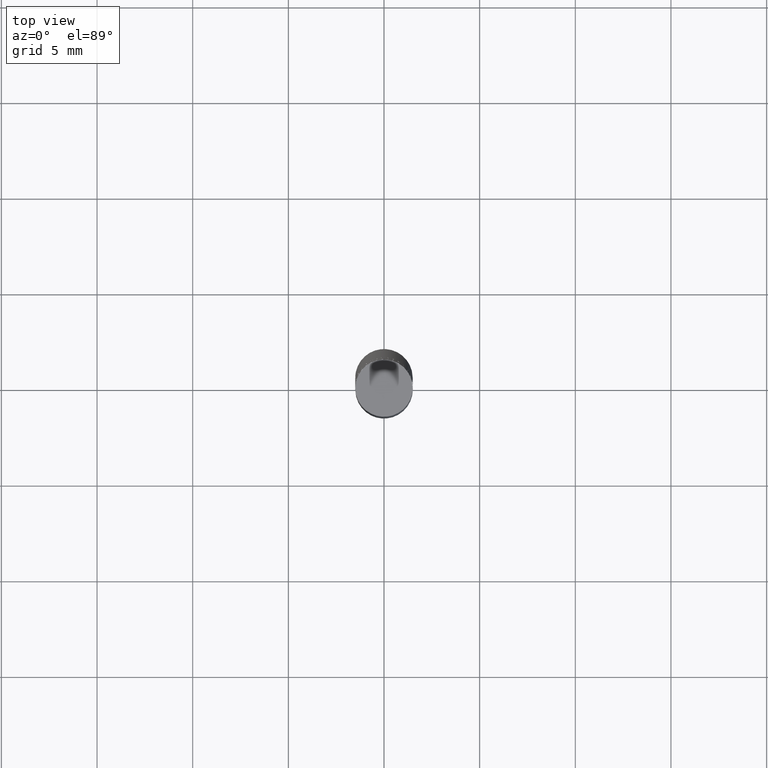
[diagram: clean part render]
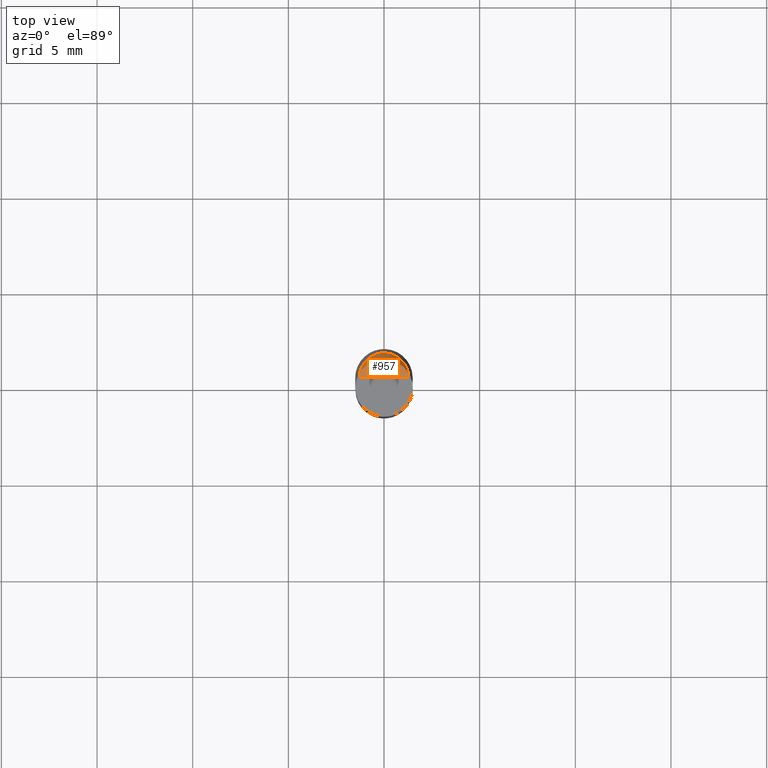
[diagram: same view with one face highlighted and labeled with its STEP entity id]
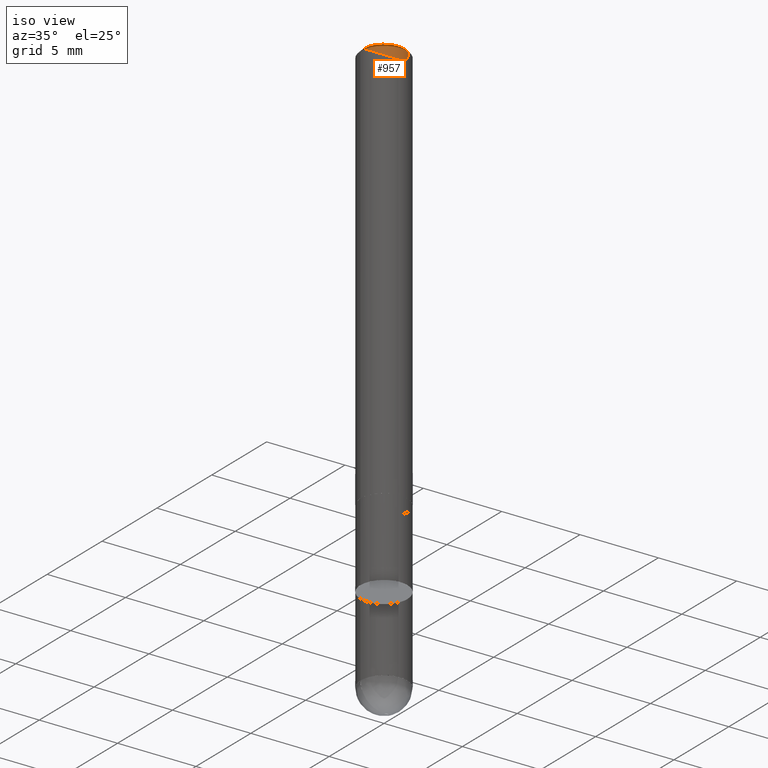
[diagram: same view with one face highlighted and labeled with its STEP entity id]
A machine part, top view. The second image highlights one B-rep face of the part: STEP entity #957.
A second angle (iso view) of the same face is appended — the face is thin or edge-on in the first view.
In plain terms, the highlighted face is a freeform B-spline surface patch.
Its self-contained STEP definition (entity closure, byte-faithful):
#736=CARTESIAN_POINT('',(1.3,0.0,26.0));
#737=CARTESIAN_POINT('',(1.3,1.3,26.0));
#738=CARTESIAN_POINT('',(0.0,1.3,26.0));
#739=CARTESIAN_POINT('',(-1.3,1.3,26.0));
#740=CARTESIAN_POINT('',(-1.3,0.0,26.0));
#741=CARTESIAN_POINT('',(0.0,0.0,26.0));
#942=(
BOUNDED_SURFACE()
B_SPLINE_SURFACE(1,2,(
(#736,#737,#738,#739,#740),
(#741,#741,#741,#741,#741)
), .UNSPECIFIED.,.F.,.F.,.F.)
B_SPLINE_SURFACE_WITH_KNOTS((2,2),(3,2,3),(
0.0,1.0),(
0.0,0.5,1.0), .UNSPECIFIED.)
GEOMETRIC_REPRESENTATION_ITEM()
RATIONAL_B_SPLINE_SURFACE(((1.0,0.707106781187,1.0,0.707106781187,1.0),
(1.0,0.707106781187,1.0,0.707106781187,1.0)
))
REPRESENTATION_ITEM('')
SURFACE()
);
#943=(
BOUNDED_CURVE()
B_SPLINE_CURVE(2,(#740,#739,#738,#737,#736),.UNSPECIFIED.,.F.,.F.)
B_SPLINE_CURVE_WITH_KNOTS((3,2,3),
(0.0,0.5,1.0),.UNSPECIFIED.)
CURVE()
GEOMETRIC_REPRESENTATION_ITEM()
RATIONAL_B_SPLINE_CURVE((1.0,0.707106781187,1.0,0.707106781187,1.0))
REPRESENTATION_ITEM('')
);
#944=(
BOUNDED_CURVE()
B_SPLINE_CURVE(1,(#736,#741),.UNSPECIFIED.,.F.,.F.)
B_SPLINE_CURVE_WITH_KNOTS((2,2),
(0.0,1.0),.UNSPECIFIED.)
CURVE()
GEOMETRIC_REPRESENTATION_ITEM()
RATIONAL_B_SPLINE_CURVE((1.0,1.0))
REPRESENTATION_ITEM('')
);
#945=(
BOUNDED_CURVE()
B_SPLINE_CURVE(1,(#741,#740),.UNSPECIFIED.,.F.,.F.)
B_SPLINE_CURVE_WITH_KNOTS((2,2),
(0.0,1.0),.UNSPECIFIED.)
CURVE()
GEOMETRIC_REPRESENTATION_ITEM()
RATIONAL_B_SPLINE_CURVE((1.0,1.0))
REPRESENTATION_ITEM('')
);
#946=VERTEX_POINT('',#736);
#947=VERTEX_POINT('',#740);
#948=VERTEX_POINT('',#741);
#949=EDGE_CURVE('',#947,#946,#943,.T.);
#950=EDGE_CURVE('',#946,#948,#944,.T.);
#951=EDGE_CURVE('',#948,#947,#945,.T.);
#952=ORIENTED_EDGE('',*,*,#949,.T.);
#953=ORIENTED_EDGE('',*,*,#950,.T.);
#954=ORIENTED_EDGE('',*,*,#951,.T.);
#955=EDGE_LOOP('',(#952,#953,#954));
#956=FACE_OUTER_BOUND('',#955,.T.);
#957=ADVANCED_FACE('',(#956),#942,.T.);